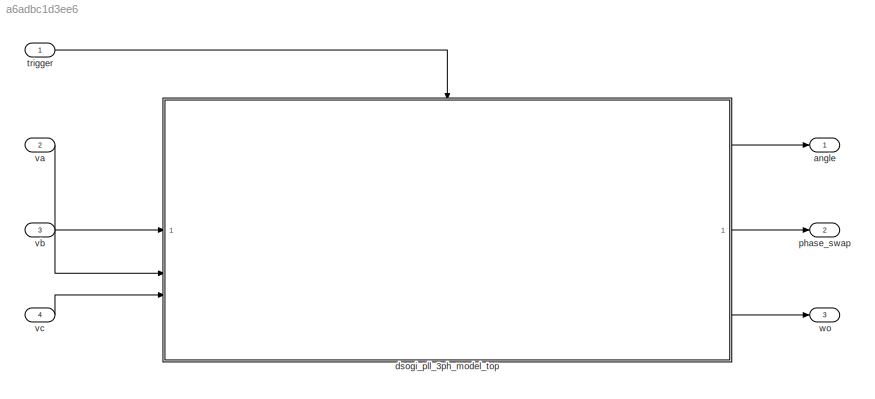
MODEL slx_a6adbc1d3ee6
KIND model
CONFIG AbsTol = auto
CONFIG EnableMultiTasking = off
CONFIG FixedStep = auto
CONFIG MaxStep = auto
CONFIG MinStep = auto
CONFIG RelTol = 1e-3
CONFIG SampleTimeConstraint = Unconstrained
CONFIG SolverName = FixedStepAuto
CONFIG StartTime = 0.0
CONFIG StopTime = 10.0
BLOCK [Outport] angle
BLOCK [ModelReference] dsogi_pll_3ph_model_top
  ModelNameDialog = dsogi_pll_3ph.slx
  ModelReferenceVersion = 1.147
  TriggerPortName = function
  TriggerPortStatesWhenEnabling = held
  TriggerPortTriggerType = function-call
BLOCK [Outport] phase_swap
  Port = 2
BLOCK [Inport] trigger
  OutputFunctionCall = on
  SampleTime = ts
BLOCK [Inport] va
  OutDataTypeStr = double
  Port = 2
BLOCK [Inport] vb
  OutDataTypeStr = double
  Port = 3
BLOCK [Inport] vc
  OutDataTypeStr = double
  Port = 4
BLOCK [Outport] wo
  Port = 3
LINE dsogi_pll_3ph_model_top:1 -> angle:1
LINE dsogi_pll_3ph_model_top:2 -> phase_swap:1
LINE dsogi_pll_3ph_model_top:3 -> wo:1
LINE trigger:1 -> dsogi_pll_3ph_model_top:trigger
LINE va:1 -> dsogi_pll_3ph_model_top:1
LINE vb:1 -> dsogi_pll_3ph_model_top:2
LINE vc:1 -> dsogi_pll_3ph_model_top:3
